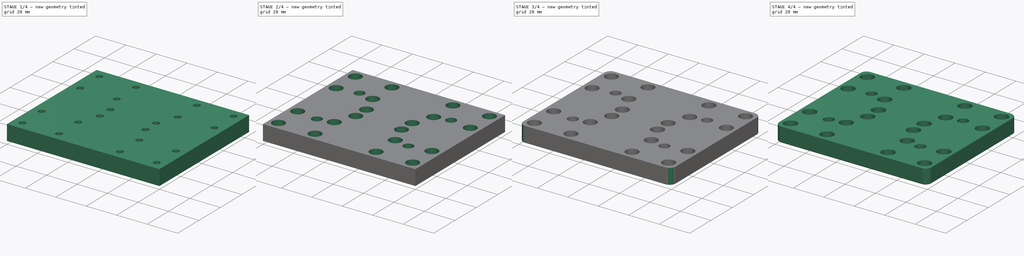
[diagram: build sequence overview — one tinted view per stage of 4, left to right]
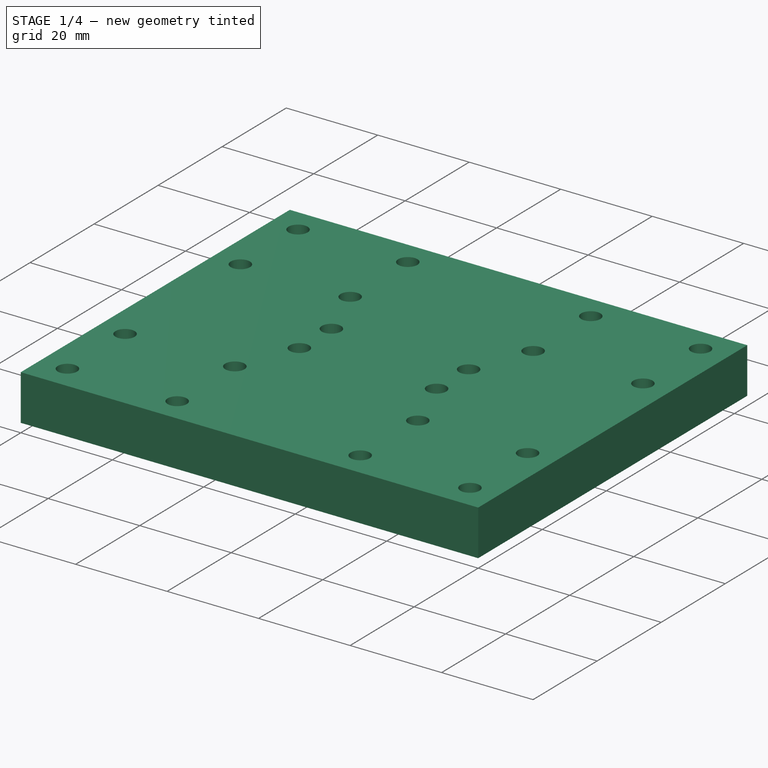
[diagram: stage 1 of 4 — iso view after this stage's code; geometry added in this stage tinted green]
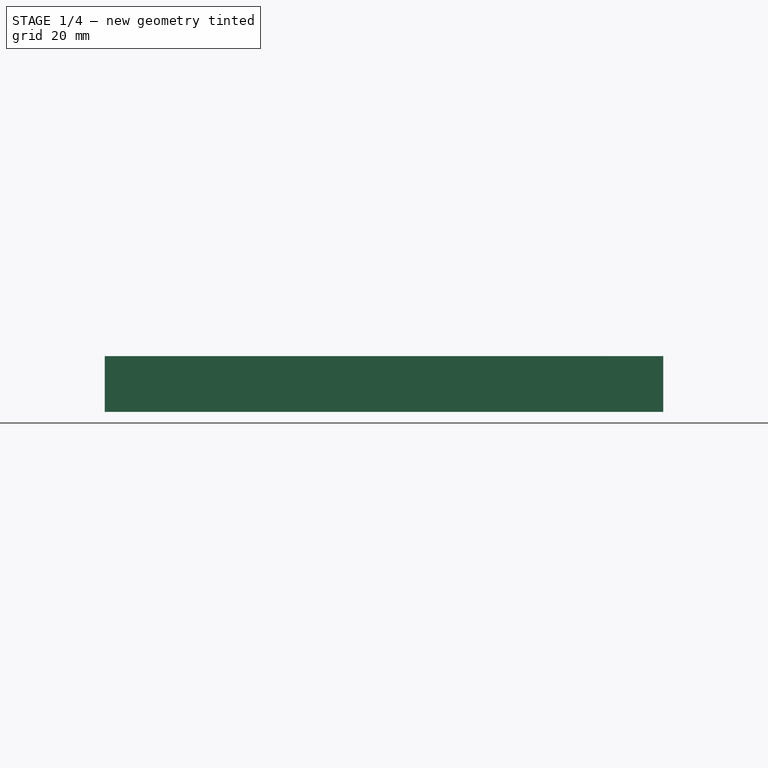
[diagram: stage 1 of 4 — front view after this stage's code; geometry added in this stage tinted green]
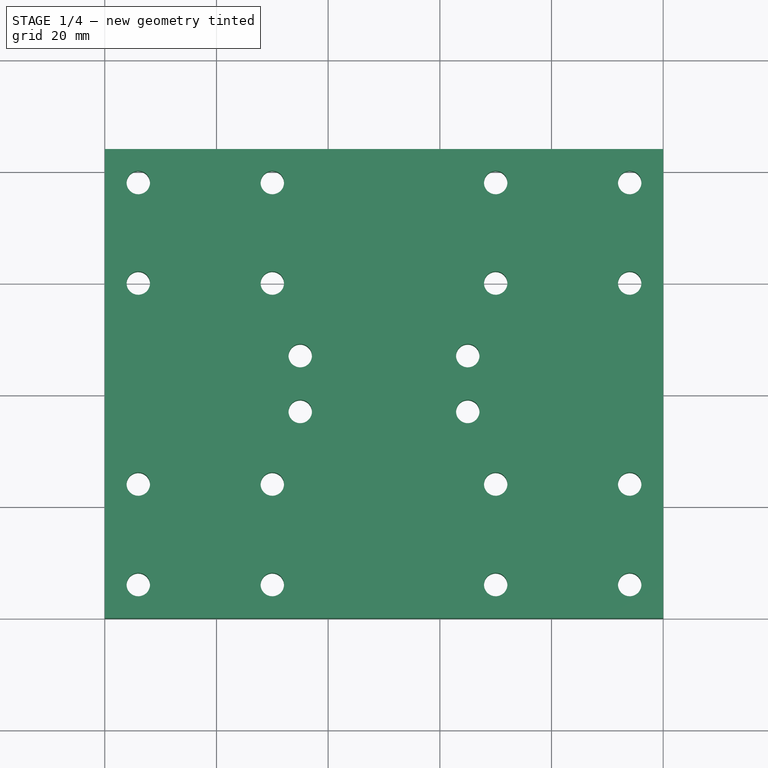
[diagram: stage 1 of 4 — top view after this stage's code; geometry added in this stage tinted green]
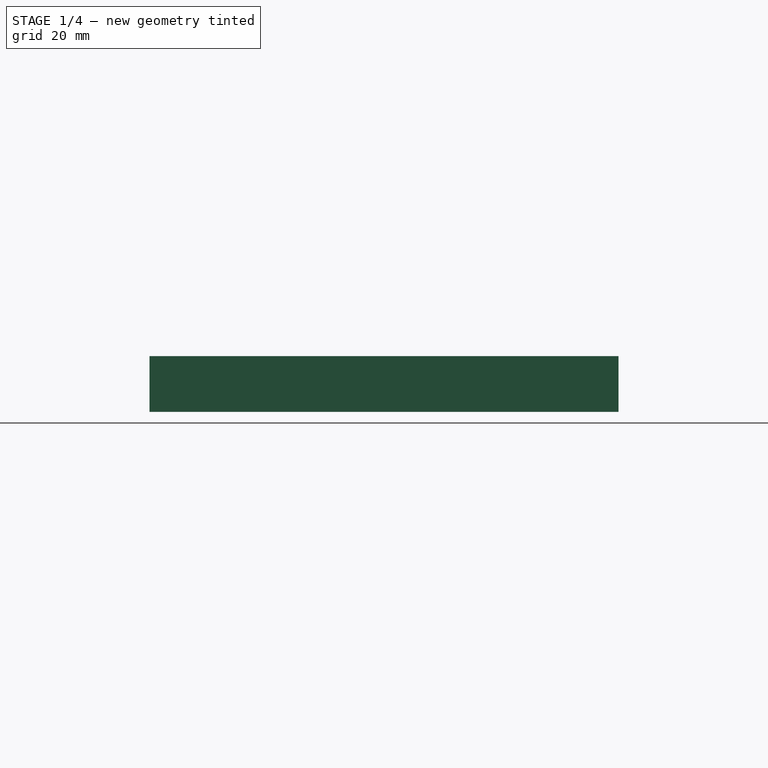
[diagram: stage 1 of 4 — right view after this stage's code; geometry added in this stage tinted green]
FCSTD DOCUMENT  (FreeCAD 0.19R23964 (Git))
Label: carriageplate2c_cham
License: All rights reserved
LicenseURL: http://en.wikipedia.org/wiki/All_rights_reserved
objects: Sketcher::SketchObject×5, PartDesign::Pocket×5, PartDesign::Chamfer×2, PartDesign::Pad×1, PartDesign::Fillet×1, PartDesign::Body×1
note: 24 computed .brp shape members not serialized (recipe doc carries the construction recipe); baked Part::Feature solids carry a one-line shape summary decoded from their .brp

FEATURE [Sketcher::SketchObject] Sketch
  FullyConstrained = true
  MapMode = 5
  Support = -> [XY_Plane]
  sketch-geometry (4):
    g0: LineSegment StartX=0 StartY=84 StartZ=0 EndX=100 EndY=84 EndZ=0
    g1: LineSegment StartX=100 StartY=84 StartZ=0 EndX=100 EndY=0 EndZ=0
    g2: LineSegment StartX=100 StartY=0 StartZ=0 EndX=0 EndY=0 EndZ=0
    g3: LineSegment StartX=0 StartY=0 StartZ=0 EndX=0 EndY=84 EndZ=0
  constraints (11):
    c: Coincident(g0,g1)
    c: Coincident(g1,g2)
    c: Coincident(g2,g3)
    c: Coincident(g3,g0)
    c: Horizontal(g0)
    c: Horizontal(g2)
    c: Vertical(g1)
    c: Vertical(g3)
    c: Coincident(g2,g-1)
    c: DistanceX(g0,g0) = 100
    c: DistanceY(g3,g3) = 84
FEATURE [PartDesign::Pad] Pad
  AllowMultiFace = false
  Direction = (1,1,1)
  Length = 10
  Length2 = 100
  Profile = -> Sketch
  Type = 0
FEATURE [Sketcher::SketchObject] Sketch001
  FullyConstrained = true
  MapMode = 5
  Placement = pos=(0,0,10) rot=(0,0,1;0rad)
  Support = -> [Pad]
  sketch-geometry (20):
    g0: Circle CenterX=6 CenterY=78 CenterZ=0 NormalX=0 NormalY=0 NormalZ=1 AngleXU=0 Radius=2.1
    g1: Circle CenterX=30 CenterY=78 CenterZ=0 NormalX=0 NormalY=0 NormalZ=1 AngleXU=0 Radius=2.1
    g2: Circle CenterX=6 CenterY=60 CenterZ=0 NormalX=0 NormalY=0 NormalZ=1 AngleXU=0 Radius=2.1
    g3: Circle CenterX=30 CenterY=60 CenterZ=0 NormalX=0 NormalY=0 NormalZ=1 AngleXU=0 Radius=2.1
    g4: Circle CenterX=6 CenterY=24 CenterZ=0 NormalX=0 NormalY=0 NormalZ=1 AngleXU=0 Radius=2.1
    g5: Circle CenterX=30 CenterY=24 CenterZ=0 NormalX=0 NormalY=0 NormalZ=1 AngleXU=0 Radius=2.1
    g6: Circle CenterX=6 CenterY=6 CenterZ=0 NormalX=0 NormalY=0 NormalZ=1 AngleXU=0 Radius=2.1
    g7: Circle CenterX=30 CenterY=6 CenterZ=0 NormalX=0 NormalY=0 NormalZ=1 AngleXU=0 Radius=2.1
    g8: Circle CenterX=70 CenterY=78 CenterZ=0 NormalX=0 NormalY=0 NormalZ=1 AngleXU=0 Radius=2.1
    g9: Circle CenterX=94 CenterY=78 CenterZ=0 NormalX=0 NormalY=0 NormalZ=1 AngleXU=0 Radius=2.1
    g10: Circle CenterX=70 CenterY=60 CenterZ=0 NormalX=0 NormalY=0 NormalZ=1 AngleXU=0 Radius=2.1
    g11: Circle CenterX=94 CenterY=60 CenterZ=0 NormalX=0 NormalY=0 NormalZ=1 AngleXU=0 Radius=2.1
    g12: Circle CenterX=70 CenterY=24 CenterZ=0 NormalX=0 NormalY=0 NormalZ=1 AngleXU=0 Radius=2.1
    g13: Circle CenterX=94 CenterY=24 CenterZ=0 NormalX=0 NormalY=0 NormalZ=1 AngleXU=0 Radius=2.1
    g14: Circle CenterX=70 CenterY=6 CenterZ=0 NormalX=0 NormalY=0 NormalZ=1 AngleXU=0 Radius=2.1
    g15: Circle CenterX=94 CenterY=6 CenterZ=0 NormalX=0 NormalY=0 NormalZ=1 AngleXU=0 Radius=2.1
    g16: Circle CenterX=35 CenterY=47 CenterZ=0 NormalX=0 NormalY=0 NormalZ=1 AngleXU=0 Radius=2.1
    g17: Circle CenterX=65 CenterY=47 CenterZ=0 NormalX=0 NormalY=0 NormalZ=1 AngleXU=0 Radius=2.1
    g18: Circle CenterX=35 CenterY=37 CenterZ=0 NormalX=0 NormalY=0 NormalZ=1 AngleXU=0 Radius=2.1
    g19: Circle CenterX=65 CenterY=37 CenterZ=0 NormalX=0 NormalY=0 NormalZ=1 AngleXU=0 Radius=2.1
  constraints (60):
    c: DistanceX(g-1,g6) = 6
    c: DistanceX(g-1,g15) = 94
    c: DistanceX(g6,g4) = 0
    c: DistanceX(g4,g2) = 0
    c: DistanceX(g2,g0) = 0
    c: DistanceX(g13,g15) = 0
    c: DistanceX(g11,g13) = 0
    c: DistanceX(g9,g11) = 0
    c: DistanceX(g6,g7) = 24
    c: DistanceX(g14,g15) = 24
    c: DistanceX(g5,g7) = 0
    c: DistanceX(g3,g5) = 0
    c: DistanceX(g3,g1) = 0
    c: DistanceX(g12,g14) = 0
    c: DistanceX(g10,g12) = 0
    c: DistanceX(g8,g10) = 0
    c: DistanceY(g-1,g6) = 6
    c: DistanceY(g-1,g0) = 78
    c: DistanceY(g6,g4) = 18
    c: DistanceY(g2,g0) = 18
    c: DistanceY(g6,g7) = 0
    c: DistanceY(g7,g14) = 0
    c: DistanceY(g14,g15) = 0
    c: DistanceY(g4,g5) = 0
    c: DistanceY(g5,g12) = 0
    c: DistanceY(g12,g13) = 0
    c: DistanceY(g3,g2) = 0
    c: DistanceY(g3,g10) = 0
    c: DistanceY(g10,g11) = 0
    c: DistanceY(g1,g0) = 0
    c: DistanceY(g8,g1) = 0
    c: DistanceY(g9,g8) = 0
    c: Radius(g0) = 2.1
    c: Equal(g0,g2)
    c: Equal(g0,g4)
    c: Equal(g0,g6)
    c: Equal(g0,g1)
    c: Equal(g0,g3)
    c: Equal(g0,g5)
    c: Equal(g0,g7)
    c: Equal(g0,g14)
    c: Equal(g0,g12)
    c: Equal(g0,g10)
    c: Equal(g0,g8)
    c: Equal(g0,g9)
    c: Equal(g0,g11)
    c: Equal(g0,g13)
    c: Equal(g0,g15)
    c: DistanceX(g-1,g18) = 35
    c: DistanceY(g-1,g18) = 37
    c: DistanceX(g18,g19) = 30
    c: DistanceY(g18,g19) = 0
    c: DistanceX(g16,g18) = 0
    c: DistanceY(g18,g16) = 10
    c: DistanceY(g16,g17) = 0
    c: DistanceX(g17,g19) = 0
    c: Radius(g16) = 2.1
    c: Equal(g16,g17)
    c: Equal(g16,g19)
    c: Equal(g16,g18)
FEATURE [PartDesign::Pocket] Pocket
  AllowMultiFace = false
  BaseFeature = -> Pad
  Length = 10
  Length2 = 100
  Profile = -> Sketch001
  Type = 0
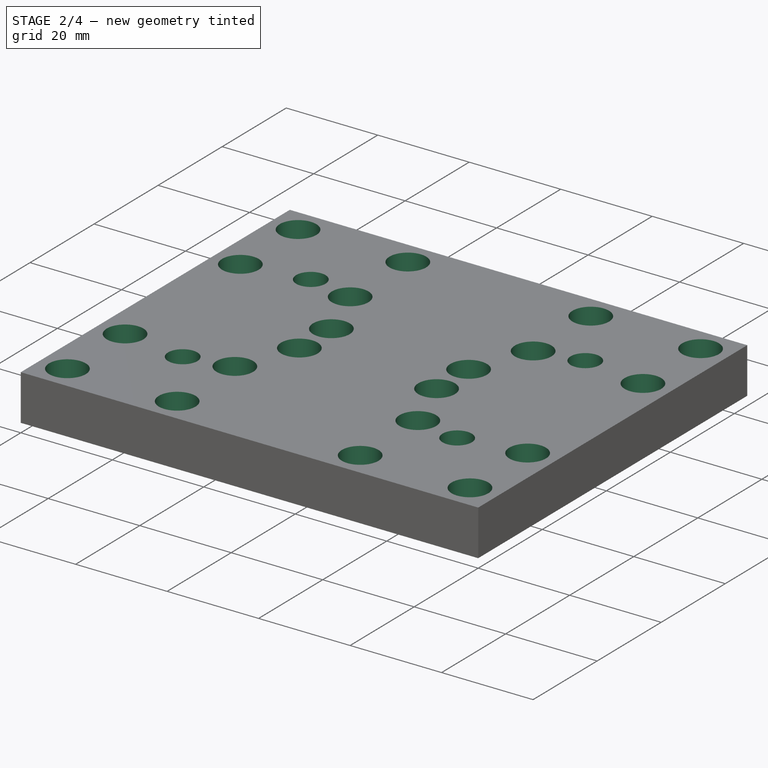
[diagram: stage 2 of 4 — iso view after this stage's code; geometry added in this stage tinted green]
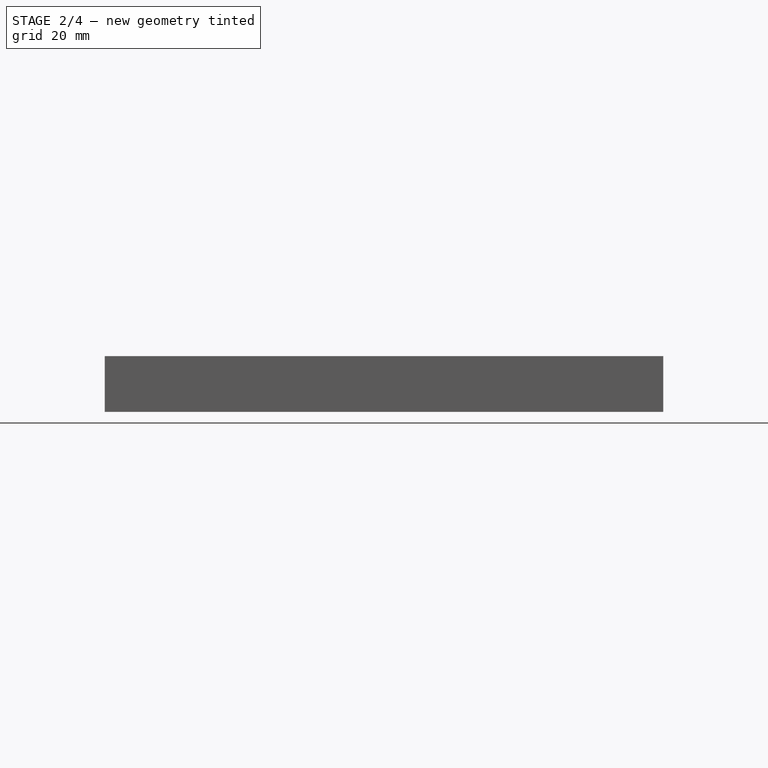
[diagram: stage 2 of 4 — front view after this stage's code; geometry added in this stage tinted green]
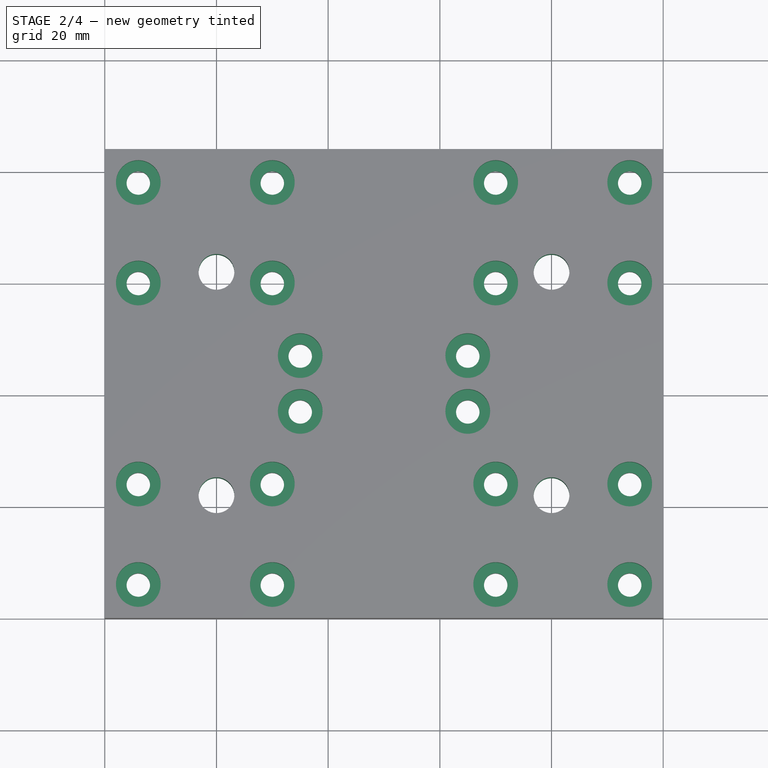
[diagram: stage 2 of 4 — top view after this stage's code; geometry added in this stage tinted green]
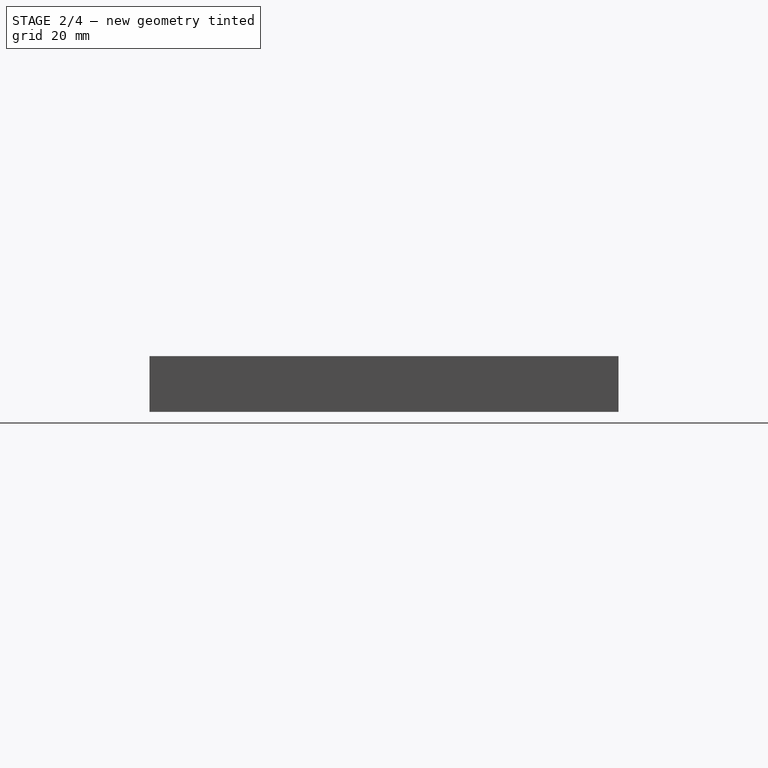
[diagram: stage 2 of 4 — right view after this stage's code; geometry added in this stage tinted green]
FEATURE [Sketcher::SketchObject] Sketch002
  FullyConstrained = true
  MapMode = 5
  Placement = pos=(0,0,10) rot=(0,0,1;0rad)
  Support = -> [Pocket]
  sketch-geometry (4):
    g0: Circle CenterX=20 CenterY=62 CenterZ=0 NormalX=0 NormalY=0 NormalZ=1 AngleXU=0 Radius=3.2
    g1: Circle CenterX=20 CenterY=22 CenterZ=0 NormalX=0 NormalY=0 NormalZ=1 AngleXU=0 Radius=3.2
    g2: Circle CenterX=80 CenterY=62 CenterZ=0 NormalX=0 NormalY=0 NormalZ=1 AngleXU=0 Radius=3.2
    g3: Circle CenterX=80 CenterY=22 CenterZ=0 NormalX=0 NormalY=0 NormalZ=1 AngleXU=0 Radius=3.2
  constraints (12):
    c: DistanceX(g-1,g1) = 20
    c: DistanceY(g-1,g1) = 22
    c: DistanceX(g1,g3) = 60
    c: DistanceY(g1,g0) = 40
    c: DistanceY(g1,g3) = 0
    c: DistanceY(g2,g0) = 0
    c: DistanceX(g2,g3) = 0
    c: Radius(g0) = 3.2
    c: Equal(g0,g2)
    c: Equal(g0,g3)
    c: Equal(g0,g1)
    c: DistanceX(g1,g0) = 0
FEATURE [PartDesign::Pocket] Pocket001
  AllowMultiFace = false
  BaseFeature = -> Pocket
  Length = 10
  Length2 = 100
  Profile = -> Sketch002
  Type = 0
FEATURE [Sketcher::SketchObject] Sketch003
  FullyConstrained = true
  MapMode = 5
  Placement = pos=(0,0,10) rot=(0,0,1;0rad)
  Support = -> [Pocket001]
  sketch-geometry (20):
    g0: Circle CenterX=6 CenterY=78 CenterZ=0 NormalX=0 NormalY=0 NormalZ=1 AngleXU=0 Radius=4
    g1: Circle CenterX=30 CenterY=78 CenterZ=0 NormalX=0 NormalY=0 NormalZ=1 AngleXU=0 Radius=4
    g2: Circle CenterX=30 CenterY=60 CenterZ=0 NormalX=0 NormalY=0 NormalZ=1 AngleXU=0 Radius=4
    g3: Circle CenterX=6 CenterY=60 CenterZ=0 NormalX=0 NormalY=0 NormalZ=1 AngleXU=0 Radius=4
    g4: Circle CenterX=70 CenterY=78 CenterZ=0 NormalX=0 NormalY=0 NormalZ=1 AngleXU=0 Radius=4
    g5: Circle CenterX=94 CenterY=78 CenterZ=0 NormalX=0 NormalY=0 NormalZ=1 AngleXU=0 Radius=4
    g6: Circle CenterX=70 CenterY=60 CenterZ=0 NormalX=0 NormalY=0 NormalZ=1 AngleXU=0 Radius=4
    g7: Circle CenterX=94 CenterY=60 CenterZ=0 NormalX=0 NormalY=0 NormalZ=1 AngleXU=0 Radius=4
    g8: Circle CenterX=6 CenterY=24 CenterZ=0 NormalX=0 NormalY=0 NormalZ=1 AngleXU=0 Radius=4
    g9: Circle CenterX=30 CenterY=24 CenterZ=0 NormalX=0 NormalY=0 NormalZ=1 AngleXU=0 Radius=4
    g10: Circle CenterX=6 CenterY=6 CenterZ=0 NormalX=0 NormalY=0 NormalZ=1 AngleXU=0 Radius=4
    g11: Circle CenterX=30 CenterY=6 CenterZ=0 NormalX=0 NormalY=0 NormalZ=1 AngleXU=0 Radius=4
    g12: Circle CenterX=70 CenterY=24 CenterZ=0 NormalX=0 NormalY=0 NormalZ=1 AngleXU=0 Radius=4
    g13: Circle CenterX=94 CenterY=24 CenterZ=0 NormalX=0 NormalY=0 NormalZ=1 AngleXU=0 Radius=4
    g14: Circle CenterX=70 CenterY=6 CenterZ=0 NormalX=0 NormalY=0 NormalZ=1 AngleXU=0 Radius=4
    g15: Circle CenterX=94 CenterY=6 CenterZ=0 NormalX=0 NormalY=0 NormalZ=1 AngleXU=0 Radius=4
    g16: Circle CenterX=35 CenterY=47 CenterZ=0 NormalX=0 NormalY=0 NormalZ=1 AngleXU=0 Radius=4
    g17: Circle CenterX=35 CenterY=37 CenterZ=0 NormalX=0 NormalY=0 NormalZ=1 AngleXU=0 Radius=4
    g18: Circle CenterX=65 CenterY=37 CenterZ=0 NormalX=0 NormalY=0 NormalZ=1 AngleXU=0 Radius=4
    g19: Circle CenterX=65 CenterY=47 CenterZ=0 NormalX=0 NormalY=0 NormalZ=1 AngleXU=0 Radius=4
  constraints (60):
    c: DistanceY(g-1,g10) = 6
    c: DistanceX(g10,g11) = 24
    c: DistanceX(g-1,g15) = 94
    c: DistanceX(g14,g15) = 24
    c: DistanceY(g10,g8) = 18
    c: DistanceY(g-1,g0) = 78
    c: DistanceY(g3,g0) = 18
    c: DistanceY(g11,g10) = 0
    c: DistanceY(g11,g14) = 0
    c: DistanceY(g15,g14) = 0
    c: DistanceY(g8,g9) = 0
    c: DistanceY(g9,g12) = 0
    c: DistanceY(g13,g12) = 0
    c: DistanceY(g3,g2) = 0
    c: DistanceY(g6,g2) = 0
    c: DistanceY(g7,g6) = 0
    c: DistanceY(g0,g1) = 0
    c: DistanceY(g4,g1) = 0
    c: DistanceY(g5,g4) = 0
    c: DistanceX(g8,g10) = 0
    c: DistanceX(g3,g8) = 0
    c: DistanceX(g-1,g10) = 6
    c: DistanceX(g11,g9) = 0
    c: DistanceX(g9,g2) = 0
    c: DistanceX(g2,g1) = 0
    c: DistanceX(g12,g14) = 0
    c: DistanceX(g12,g6) = 0
    c: DistanceX(g4,g6) = 0
    c: DistanceX(g13,g15) = 0
    c: DistanceX(g7,g13) = 0
    c: DistanceX(g7,g5) = 0
    c: DistanceX(g-1,g17) = 35
    c: DistanceY(g-1,g17) = 37
    c: DistanceX(g17,g18) = 30
    c: DistanceY(g17,g16) = 10
    c: DistanceY(g19,g16) = 0
    c: DistanceY(g17,g18) = 0
    c: DistanceX(g19,g18) = 0
    c: DistanceX(g3,g0) = 0
    c: Radius(g0) = 4
    c: Equal(g0,g1)
    c: Equal(g0,g4)
    c: Equal(g0,g5)
    c: Equal(g0,g7)
    c: Equal(g0,g6)
    c: Equal(g0,g2)
    c: Equal(g0,g3)
    c: Equal(g0,g16)
    c: Equal(g0,g19)
    c: Equal(g0,g17)
    c: Equal(g0,g18)
    c: Equal(g0,g8)
    c: Equal(g0,g9)
    c: Equal(g0,g12)
    c: Equal(g0,g13)
    c: Equal(g0,g15)
    c: Equal(g0,g14)
    c: Equal(g0,g11)
    c: Equal(g0,g10)
    c: DistanceX(g17,g16) = 0
FEATURE [PartDesign::Pocket] Pocket002
  AllowMultiFace = false
  BaseFeature = -> Pocket001
  Length = 5
  Length2 = 100
  Profile = -> Sketch003
  Type = 0
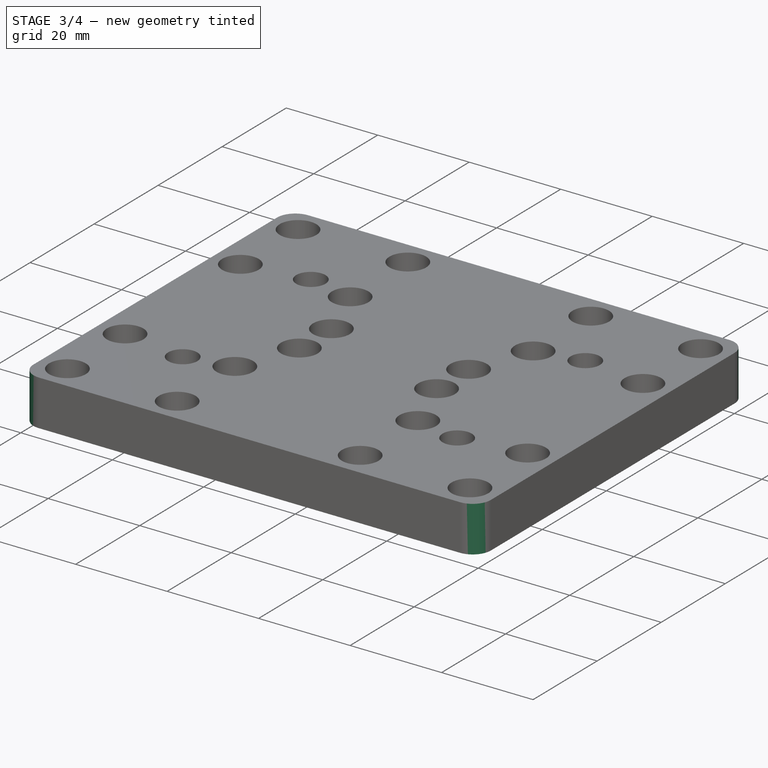
[diagram: stage 3 of 4 — iso view after this stage's code; geometry added in this stage tinted green]
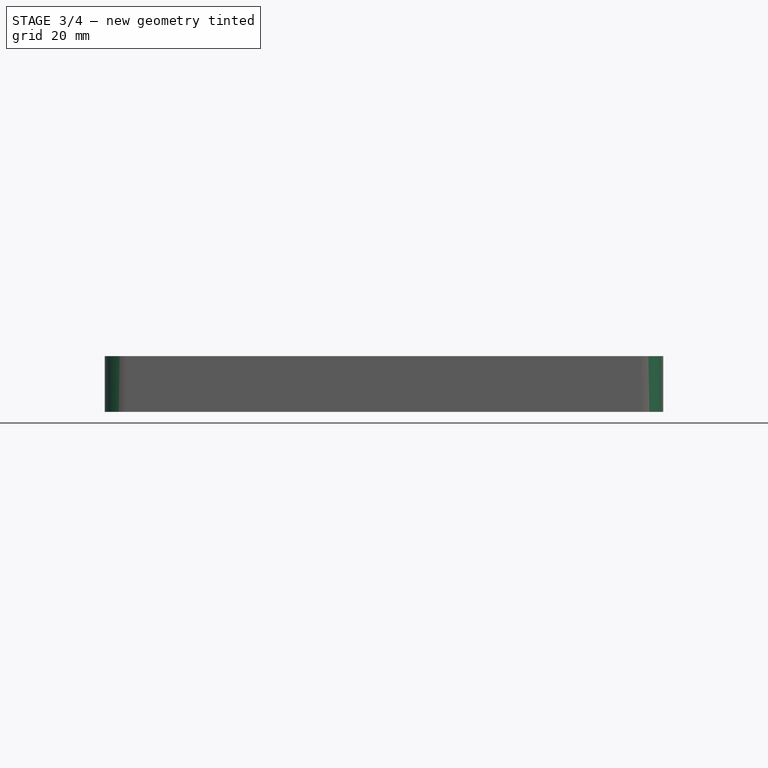
[diagram: stage 3 of 4 — front view after this stage's code; geometry added in this stage tinted green]
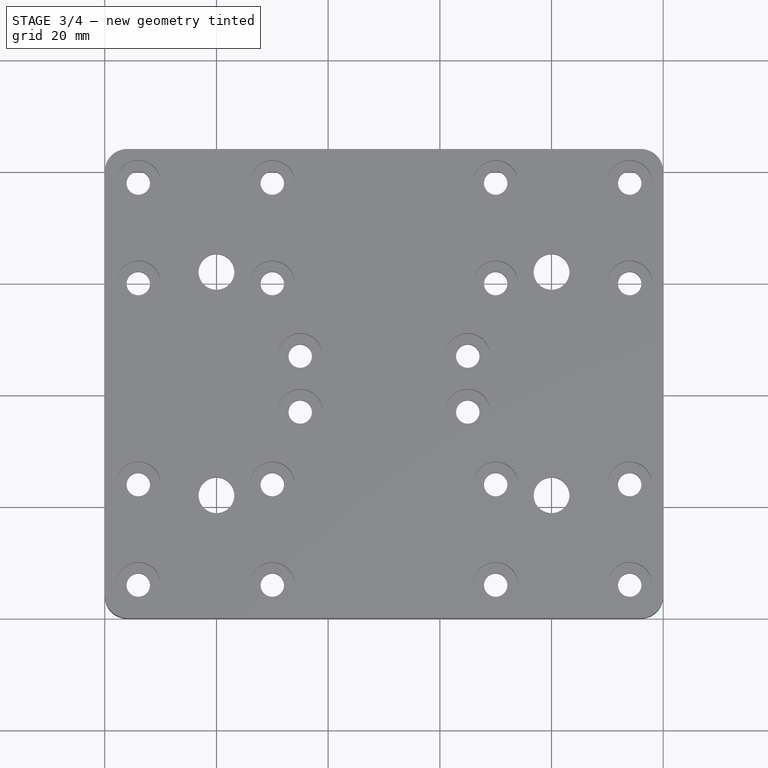
[diagram: stage 3 of 4 — top view after this stage's code; geometry added in this stage tinted green]
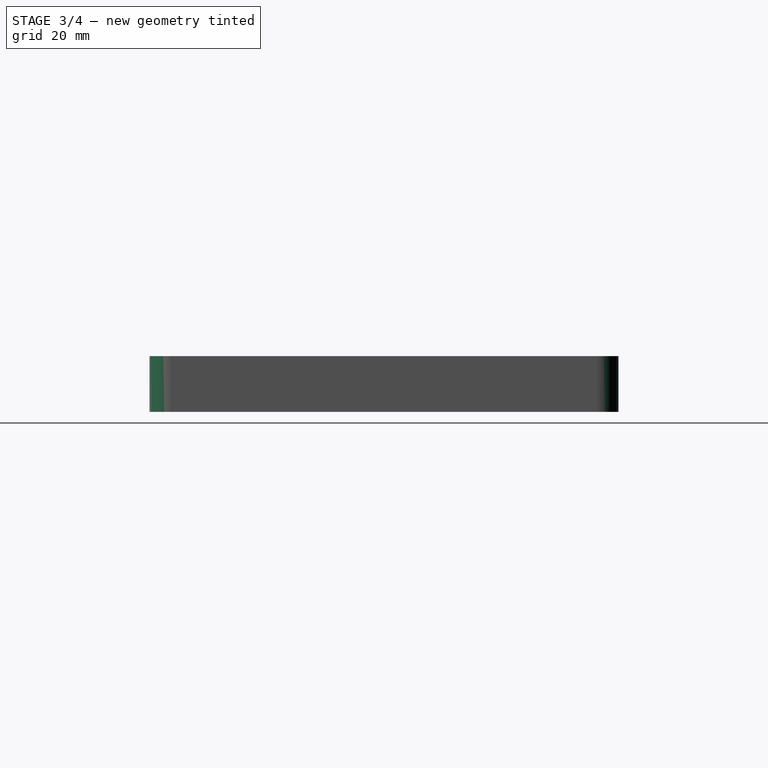
[diagram: stage 3 of 4 — right view after this stage's code; geometry added in this stage tinted green]
FEATURE [PartDesign::Pocket] Pocket003
  AllowMultiFace = false
  BaseFeature = -> Pocket002
  Length = 4
  Length2 = 100
  Profile = -> Sketch003
  Type = 0
FEATURE [Sketcher::SketchObject] Sketch004
  FullyConstrained = true
  MapMode = 5
  Placement = pos=(0,0,0) rot=(1,0,0;3.14159rad)
  Support = -> [Pocket003]
  sketch-geometry (28):
    g0: LineSegment StartX=14.4236 StartY=-23.7049 StartZ=0 EndX=18.6883 EndY=-27.6818 EndZ=0
    g1: LineSegment StartX=18.6883 StartY=-27.6818 StartZ=0 EndX=24.2647 EndY=-25.9769 EndZ=0
    g2: LineSegment StartX=24.2647 StartY=-25.9769 StartZ=0 EndX=25.5764 EndY=-20.2951 EndZ=0
    g3: LineSegment StartX=25.5764 StartY=-20.2951 StartZ=0 EndX=21.3117 EndY=-16.3182 EndZ=0
    g4: LineSegment StartX=21.3117 StartY=-16.3182 StartZ=0 EndX=15.7353 EndY=-18.0231 EndZ=0
    g5: LineSegment StartX=15.7353 StartY=-18.0231 StartZ=0 EndX=14.4236 EndY=-23.7049 EndZ=0
    g6: Circle CenterX=20 CenterY=-22 CenterZ=0 NormalX=0 NormalY=0 NormalZ=1 AngleXU=0 Radius=5.83124
    g7: LineSegment StartX=74.3182 StartY=-20.6883 StartZ=0 EndX=76.0231 EndY=-26.2647 EndZ=0
    g8: LineSegment StartX=76.0231 StartY=-26.2647 StartZ=0 EndX=81.7049 EndY=-27.5764 EndZ=0
    g9: LineSegment StartX=81.7049 StartY=-27.5764 StartZ=0 EndX=85.6818 EndY=-23.3117 EndZ=0
    g10: LineSegment StartX=85.6818 StartY=-23.3117 StartZ=0 EndX=83.9769 EndY=-17.7353 EndZ=0
    g11: LineSegment StartX=83.9769 StartY=-17.7353 StartZ=0 EndX=78.2951 EndY=-16.4236 EndZ=0
    g12: LineSegment StartX=78.2951 StartY=-16.4236 StartZ=0 EndX=74.3182 EndY=-20.6883 EndZ=0
    g13: Circle CenterX=80 CenterY=-22 CenterZ=0 NormalX=0 NormalY=0 NormalZ=1 AngleXU=0 Radius=5.83124
    g14: LineSegment StartX=74.4236 StartY=-63.7049 StartZ=0 EndX=78.6883 EndY=-67.6818 EndZ=0
    g15: LineSegment StartX=78.6883 StartY=-67.6818 StartZ=0 EndX=84.2647 EndY=-65.9769 EndZ=0
    g16: LineSegment StartX=84.2647 StartY=-65.9769 StartZ=0 EndX=85.5764 EndY=-60.2951 EndZ=0
    g17: LineSegment StartX=85.5764 StartY=-60.2951 StartZ=0 EndX=81.3117 EndY=-56.3182 EndZ=0
    g18: LineSegment StartX=81.3117 StartY=-56.3182 StartZ=0 EndX=75.7353 EndY=-58.0231 EndZ=0
    g19: LineSegment StartX=75.7353 StartY=-58.0231 StartZ=0 EndX=74.4236 EndY=-63.7049 EndZ=0
    g20: Circle CenterX=80 CenterY=-62 CenterZ=0 NormalX=0 NormalY=0 NormalZ=1 AngleXU=0 Radius=5.83124
    g21: LineSegment StartX=14.3182 StartY=-60.6883 StartZ=0 EndX=16.0231 EndY=-66.2647 EndZ=0
    g22: LineSegment StartX=16.0231 StartY=-66.2647 StartZ=0 EndX=21.7049 EndY=-67.5764 EndZ=0
    g23: LineSegment StartX=21.7049 StartY=-67.5764 StartZ=0 EndX=25.6818 EndY=-63.3117 EndZ=0
    g24: LineSegment StartX=25.6818 StartY=-63.3117 StartZ=0 EndX=23.9769 EndY=-57.7353 EndZ=0
    g25: LineSegment StartX=23.9769 StartY=-57.7353 StartZ=0 EndX=18.2951 EndY=-56.4236 EndZ=0
    g26: LineSegment StartX=18.2951 StartY=-56.4236 StartZ=0 EndX=14.3182 EndY=-60.6883 EndZ=0
    g27: Circle CenterX=20 CenterY=-62 CenterZ=0 NormalX=0 NormalY=0 NormalZ=1 AngleXU=0 Radius=5.83124
  constraints (68):
    c: Coincident(g0,g1)
    c: Coincident(g1,g2)
    c: Coincident(g2,g3)
    c: Coincident(g3,g4)
    c: Coincident(g4,g5)
    c: Coincident(g5,g0)
    c: Equal(g0, g1-g5) x5
    c: PointOnObject(g0,g6)
    c: PointOnObject(g1,g6)
    c: PointOnObject(g2,g6)
    c: PointOnObject(g3,g6)
    c: PointOnObject(g4,g6)
    c: PointOnObject(g5,g6)
    c: Coincident(g7,g8)
    c: Coincident(g8,g9)
    c: Coincident(g9,g10)
    c: Coincident(g10,g11)
    c: Coincident(g11,g12)
    c: Coincident(g12,g7)
    c: Equal(g7, g8-g12) x5
    c: PointOnObject(g7,g13)
    c: PointOnObject(g8,g13)
    c: PointOnObject(g9,g13)
    c: PointOnObject(g10,g13)
    c: PointOnObject(g11,g13)
    c: PointOnObject(g12,g13)
    c: Coincident(g14,g15)
    c: Coincident(g15,g16)
    c: Coincident(g16,g17)
    c: Coincident(g17,g18)
    c: Coincident(g18,g19)
    c: Coincident(g19,g14)
    c: Equal(g14, g15-g19) x5
    c: PointOnObject(g14,g20)
    c: PointOnObject(g15,g20)
    c: PointOnObject(g16,g20)
    c: PointOnObject(g17,g20)
    c: PointOnObject(g18,g20)
    c: PointOnObject(g19,g20)
    c: Coincident(g21,g22)
    c: Coincident(g22,g23)
    c: Coincident(g23,g24)
    c: Coincident(g24,g25)
    c: Coincident(g25,g26)
    c: Coincident(g26,g21)
    c: Equal(g21, g22-g26) x5
    c: PointOnObject(g21,g27)
    c: PointOnObject(g22,g27)
    c: PointOnObject(g23,g27)
    c: PointOnObject(g24,g27)
    c: PointOnObject(g25,g27)
    c: PointOnObject(g26,g27)
    c: Distance(g4,g0) = 10.1
    c: Angle(g3) = 2.3911
    c: DistanceX(g-1,g6) = 20
    c: DistanceY(g6,g-1) = 22
    c: Distance(g11,g7) = 10.1
    c: Angle(g10) = 1.8675
    c: DistanceX(g6,g13) = 60
    c: DistanceY(g6,g13) = 0
    c: Distance(g25,g21) = 10.1
    c: Angle(g24) = 1.8675
    c: DistanceX(g27,g6) = 0
    c: DistanceY(g27,g6) = 40
    c: Angle(g17) = 2.3911
    c: Distance(g14,g16) = 10.1
    c: DistanceX(g20,g13) = 0
    c: DistanceY(g27,g20) = 0
FEATURE [PartDesign::Pocket] Pocket004
  BaseFeature = -> Pocket003
  Length = 5.2
  Length2 = 100
  Profile = -> Sketch004
  Type = 0
FEATURE [PartDesign::Fillet] Fillet
  Base = -> Pocket004 [Edge8,Edge2,Edge5,Edge1]
  BaseFeature = -> Pocket004
  Radius = 4
  SupportTransform = false
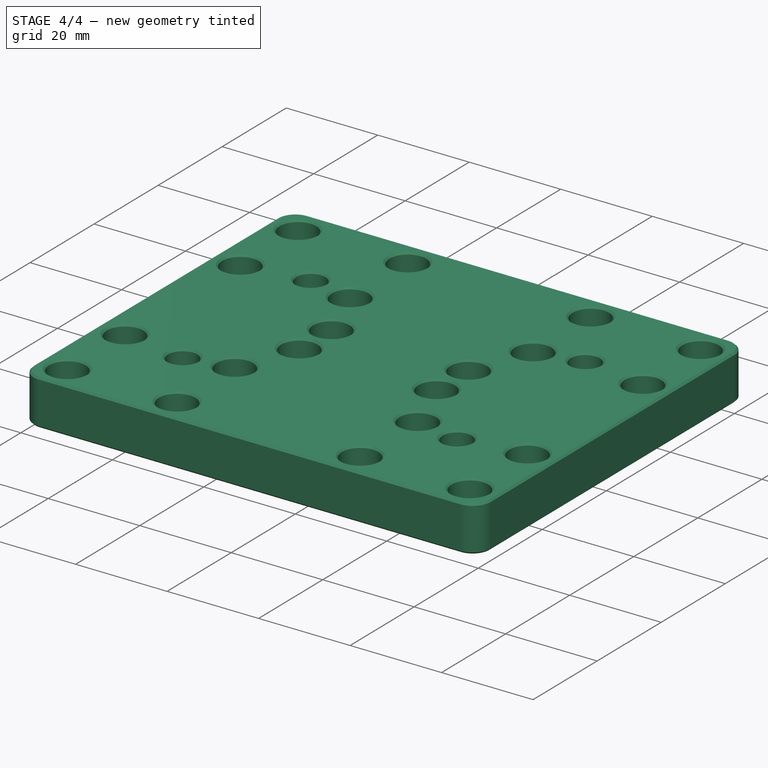
[diagram: stage 4 of 4 — iso view after this stage's code; geometry added in this stage tinted green]
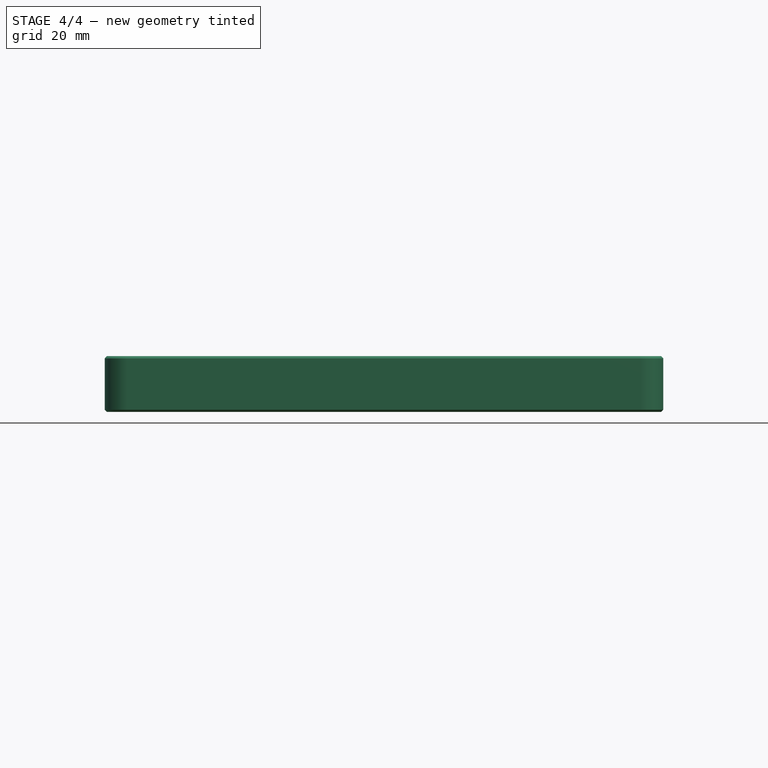
[diagram: stage 4 of 4 — front view after this stage's code; geometry added in this stage tinted green]
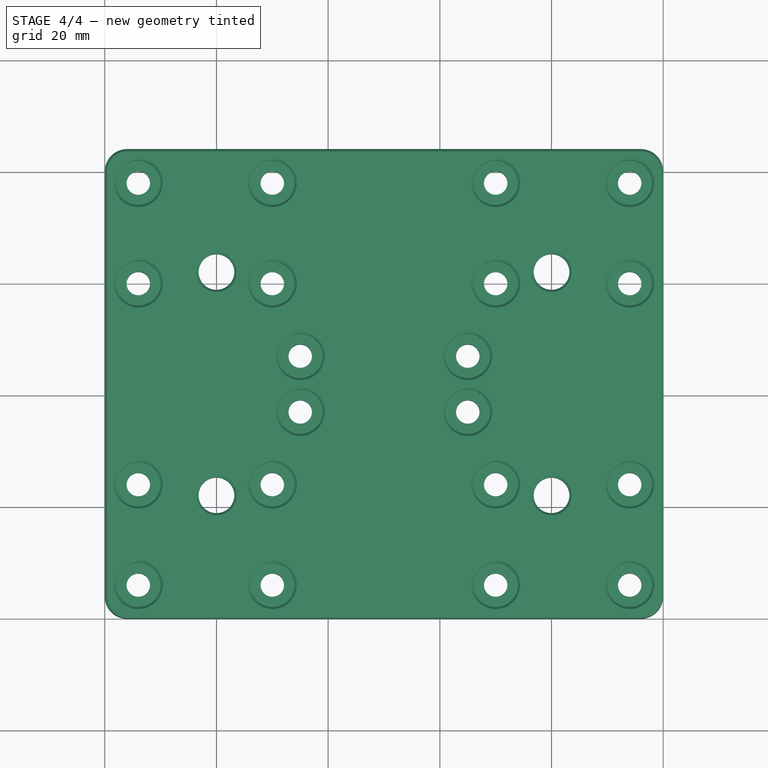
[diagram: stage 4 of 4 — top view after this stage's code; geometry added in this stage tinted green]
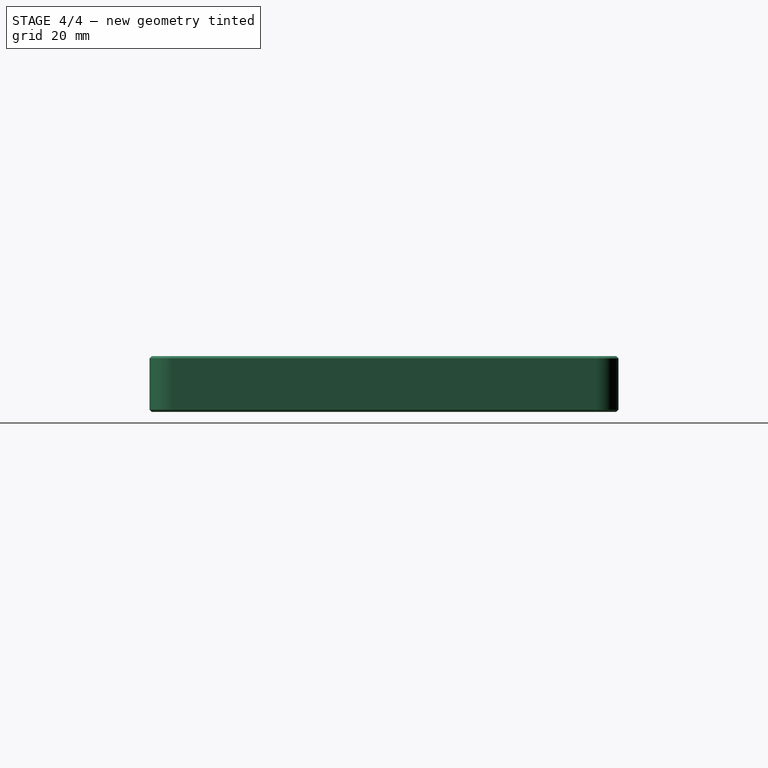
[diagram: stage 4 of 4 — right view after this stage's code; geometry added in this stage tinted green]
FEATURE [PartDesign::Chamfer] Chamfer
  Angle = 45
  Base = -> Fillet [Face5]
  BaseFeature = -> Fillet
  ChamferType = 0
  FlipDirection = false
  Size = 0.4
  Size2 = 1
  SupportTransform = false
FEATURE [PartDesign::Chamfer] Chamfer001
  Angle = 45
  Base = -> Chamfer [Face4]
  BaseFeature = -> Chamfer
  ChamferType = 0
  FlipDirection = false
  Size = 0.4
  Size2 = 1
  SupportTransform = false
FEATURE [PartDesign::Body] Body
  Group = -> [Sketch,Pad,Sketch001,Pocket,Sketch002,Pocket001,Sketch003,Pocket002,Pocket003,Sketch004,Pocket004,Fillet,Chamfer,Chamfer001]
  Origin = -> Origin
  Tip = -> Chamfer001
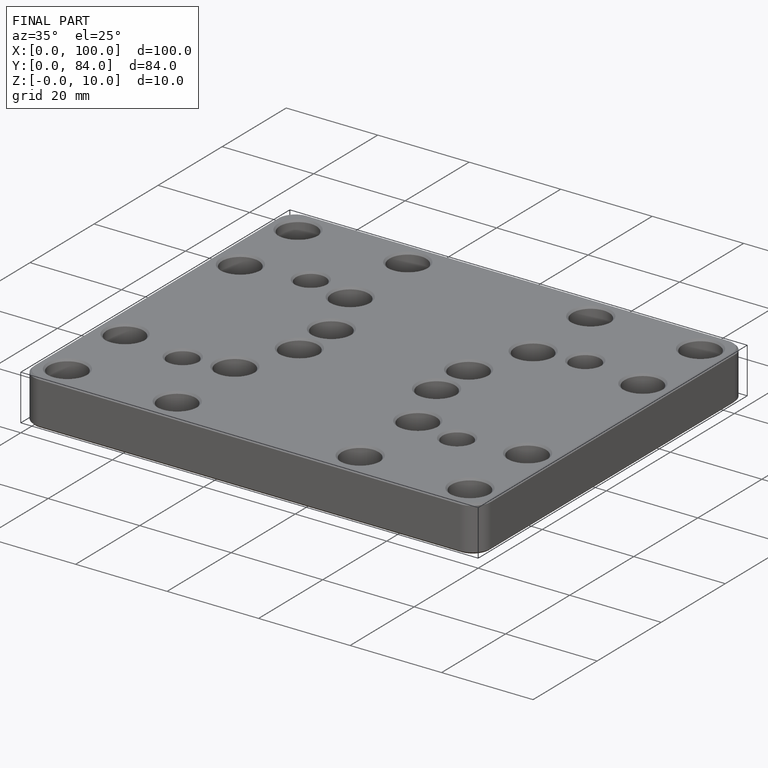
[diagram: finished part — iso view with bounding-box wireframe]
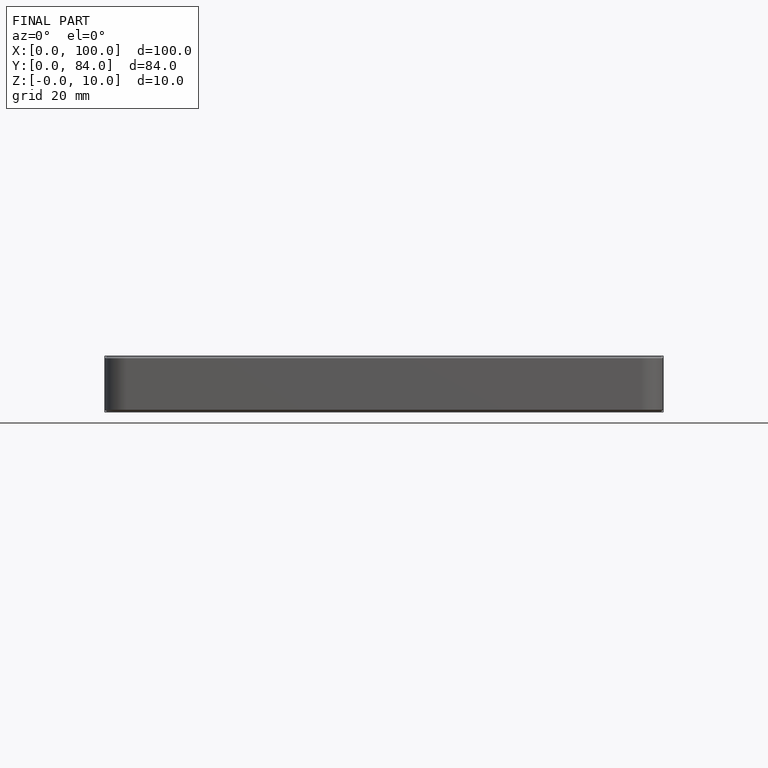
[diagram: finished part — front view with bounding-box wireframe]
